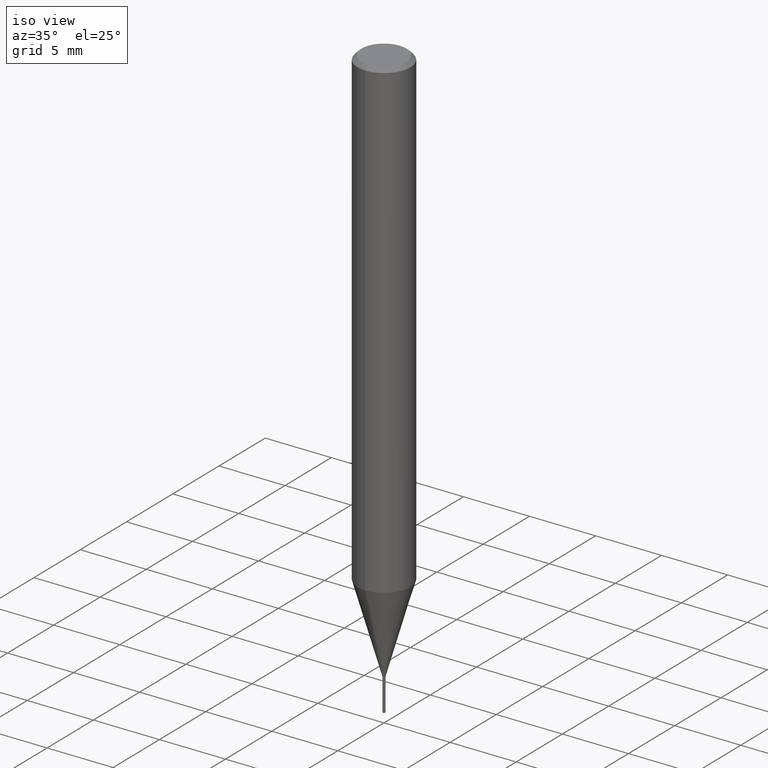
[diagram: clean part render]
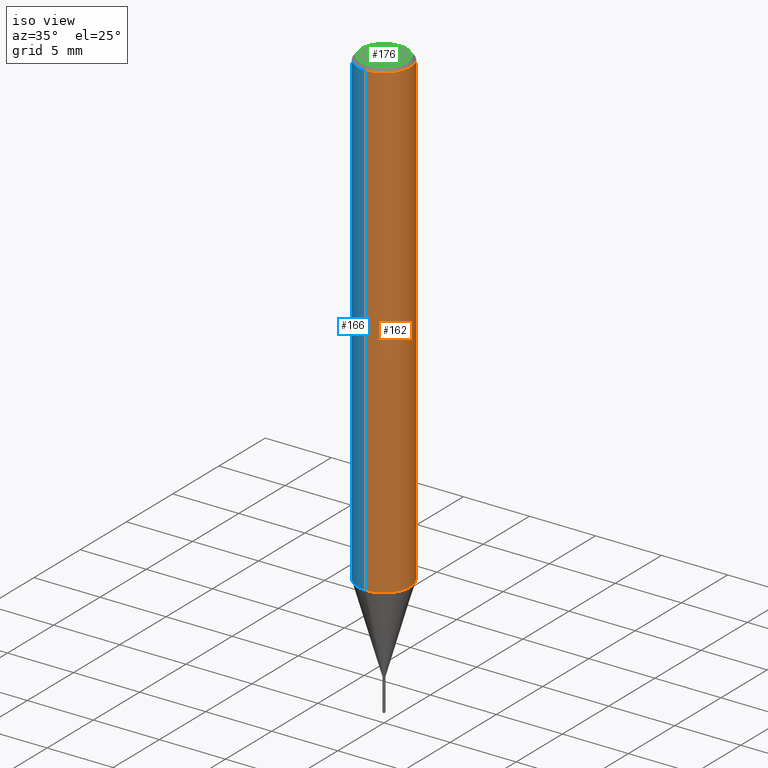
[diagram: same view with three faces highlighted in distinct colors, each labeled with its STEP entity id]
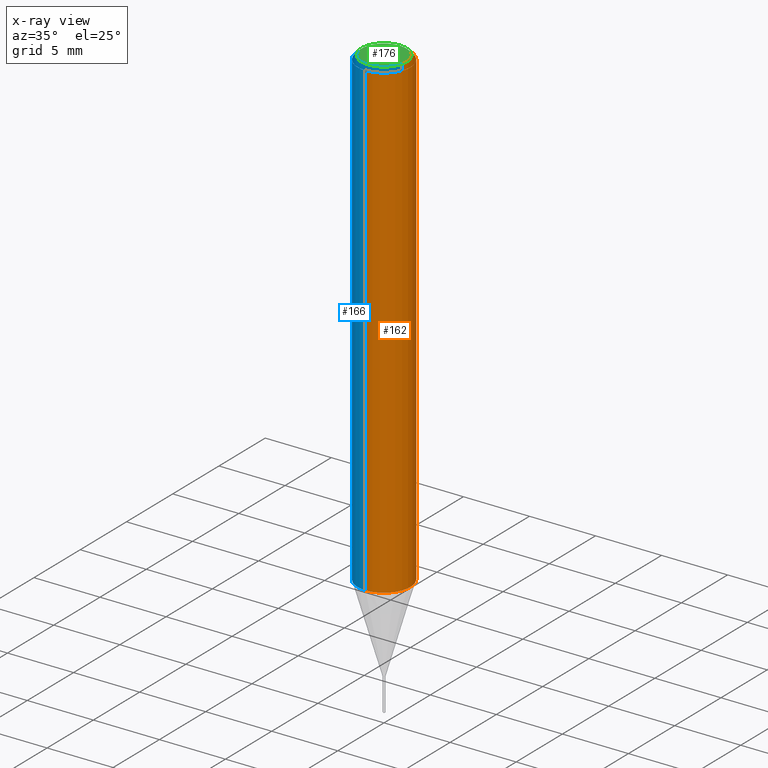
[diagram: x-ray of the same camera — body ghosted, the three highlighted faces saturated]
A machine part, iso view with three faces highlighted in distinct colors.
The next image is the same camera in x-ray (body ghosted, the three faces saturated) — at least one of them is partly hidden behind the body in this view.
Their STEP definitions:

[orange] entity #162 — the highlighted cylindrical surface (edge-blend (fillet) strip) has radius 2 mm, axis along (-0, -0, 1).
#112=EDGE_CURVE('',#182,#152,#254,.T.);
#124=VERTEX_POINT('',#266);
#142=VERTEX_POINT('',#287);
#144=EDGE_CURVE('',#182,#142,#289,.T.);
#148=EDGE_CURVE('',#124,#152,#293,.T.);
#152=VERTEX_POINT('',#298);
#162=ADVANCED_FACE('',(#308),#309,.T.);
#182=VERTEX_POINT('',#333);
#208=EDGE_CURVE('',#142,#124,#366,.T.);
#254=CIRCLE('',#409,2.0);
#266=CARTESIAN_POINT('',(2.44921270764475E-016,-2.0,-35.856));
#287=CARTESIAN_POINT('',(0.0,2.0,-35.856));
#289=LINE('',#452,#453);
#293=LINE('',#457,#458);
#298=CARTESIAN_POINT('',(2.44921270764475E-016,-2.0,-0.299999999999997));
#308=FACE_OUTER_BOUND('',#477,.T.);
#309=CYLINDRICAL_SURFACE('',#478,2.0);
#333=CARTESIAN_POINT('',(0.0,2.0,-0.299999999999997));
#366=CIRCLE('',#547,2.0);
#409=AXIS2_PLACEMENT_3D('',#578,#579,#580);
#452=CARTESIAN_POINT('',(-2.44921270764475E-016,2.0,-18.078));
#453=VECTOR('',#616,1.0);
#457=CARTESIAN_POINT('',(2.44921270764475E-016,-2.0,-18.078));
#458=VECTOR('',#618,1.0);
#477=EDGE_LOOP('',(#633,#634,#635,#636));
#478=AXIS2_PLACEMENT_3D('',#637,#638,#639);
#547=AXIS2_PLACEMENT_3D('',#730,#731,#732);
#578=CARTESIAN_POINT('',(0.0,0.0,-0.299999999999997));
#579=DIRECTION('',(0.0,0.0,-1.0));
#580=DIRECTION('',(0.0,1.0,0.0));
#616=DIRECTION('',(0.0,0.0,-1.0));
#618=DIRECTION('',(-0.0,-0.0,1.0));
#633=ORIENTED_EDGE('',*,*,#144,.F.);
#634=ORIENTED_EDGE('',*,*,#112,.T.);
#635=ORIENTED_EDGE('',*,*,#148,.F.);
#636=ORIENTED_EDGE('',*,*,#208,.F.);
#637=CARTESIAN_POINT('',(0.0,0.0,-18.078));
#638=DIRECTION('',(-0.0,-0.0,1.0));
#639=DIRECTION('',(0.0,1.0,0.0));
#730=CARTESIAN_POINT('',(0.0,0.0,-35.856));
#731=DIRECTION('',(0.0,0.0,-1.0));
#732=DIRECTION('',(0.0,1.0,0.0));

[blue] entity #166 — the highlighted cylindrical surface (edge-blend (fillet) strip) has radius 2 mm, axis along (-0, -0, 1).
#118=EDGE_CURVE('',#124,#142,#260,.T.);
#122=EDGE_CURVE('',#152,#182,#264,.T.);
#124=VERTEX_POINT('',#266);
#142=VERTEX_POINT('',#287);
#144=EDGE_CURVE('',#182,#142,#289,.T.);
#148=EDGE_CURVE('',#124,#152,#293,.T.);
#152=VERTEX_POINT('',#298);
#166=ADVANCED_FACE('',(#313),#314,.T.);
#182=VERTEX_POINT('',#333);
#260=CIRCLE('',#418,2.0);
#264=CIRCLE('',#423,2.0);
#266=CARTESIAN_POINT('',(2.44921270764475E-016,-2.0,-35.856));
#287=CARTESIAN_POINT('',(0.0,2.0,-35.856));
#289=LINE('',#452,#453);
#293=LINE('',#457,#458);
#298=CARTESIAN_POINT('',(2.44921270764475E-016,-2.0,-0.299999999999997));
#313=FACE_OUTER_BOUND('',#484,.T.);
#314=CYLINDRICAL_SURFACE('',#485,2.0);
#333=CARTESIAN_POINT('',(0.0,2.0,-0.299999999999997));
#418=AXIS2_PLACEMENT_3D('',#582,#583,#584);
#423=AXIS2_PLACEMENT_3D('',#585,#586,#587);
#452=CARTESIAN_POINT('',(-2.44921270764475E-016,2.0,-18.078));
#453=VECTOR('',#616,1.0);
#457=CARTESIAN_POINT('',(2.44921270764475E-016,-2.0,-18.078));
#458=VECTOR('',#618,1.0);
#484=EDGE_LOOP('',(#642,#643,#644,#645));
#485=AXIS2_PLACEMENT_3D('',#646,#647,#648);
#582=CARTESIAN_POINT('',(0.0,0.0,-35.856));
#583=DIRECTION('',(0.0,0.0,-1.0));
#584=DIRECTION('',(0.0,1.0,0.0));
#585=CARTESIAN_POINT('',(0.0,0.0,-0.299999999999997));
#586=DIRECTION('',(0.0,0.0,-1.0));
#587=DIRECTION('',(0.0,1.0,0.0));
#616=DIRECTION('',(0.0,0.0,-1.0));
#618=DIRECTION('',(-0.0,-0.0,1.0));
#642=ORIENTED_EDGE('',*,*,#144,.T.);
#643=ORIENTED_EDGE('',*,*,#118,.F.);
#644=ORIENTED_EDGE('',*,*,#148,.T.);
#645=ORIENTED_EDGE('',*,*,#122,.T.);
#646=CARTESIAN_POINT('',(0.0,0.0,-18.078));
#647=DIRECTION('',(-0.0,-0.0,1.0));
#648=DIRECTION('',(0.0,1.0,0.0));

[green] entity #176 — the highlighted planar face has unit normal (-0, 0, 1).
#94=EDGE_CURVE('',#116,#136,#235,.T.);
#100=EDGE_CURVE('',#136,#116,#241,.T.);
#116=VERTEX_POINT('',#258);
#136=VERTEX_POINT('',#281);
#176=ADVANCED_FACE('',(#325),#326,.T.);
#235=CIRCLE('',#386,1.7);
#241=CIRCLE('',#392,1.7);
#258=CARTESIAN_POINT('',(0.0,1.7,0.0));
#281=CARTESIAN_POINT('',(2.08183080149804E-016,-1.7,0.0));
#325=FACE_OUTER_BOUND('',#499,.T.);
#326=PLANE('',#500);
#386=AXIS2_PLACEMENT_3D('',#559,#560,#561);
#392=AXIS2_PLACEMENT_3D('',#563,#564,#565);
#499=EDGE_LOOP('',(#667,#668));
#500=AXIS2_PLACEMENT_3D('',#669,#670,#671);
#559=CARTESIAN_POINT('',(0.0,0.0,0.0));
#560=DIRECTION('',(0.0,0.0,-1.0));
#561=DIRECTION('',(0.0,1.0,0.0));
#563=CARTESIAN_POINT('',(0.0,0.0,0.0));
#564=DIRECTION('',(0.0,0.0,-1.0));
#565=DIRECTION('',(0.0,1.0,0.0));
#667=ORIENTED_EDGE('',*,*,#94,.F.);
#668=ORIENTED_EDGE('',*,*,#100,.F.);
#669=CARTESIAN_POINT('',(0.0,0.85,0.0));
#670=DIRECTION('',(-0.0,0.0,1.0));
#671=DIRECTION('',(0.0,-1.0,0.0));